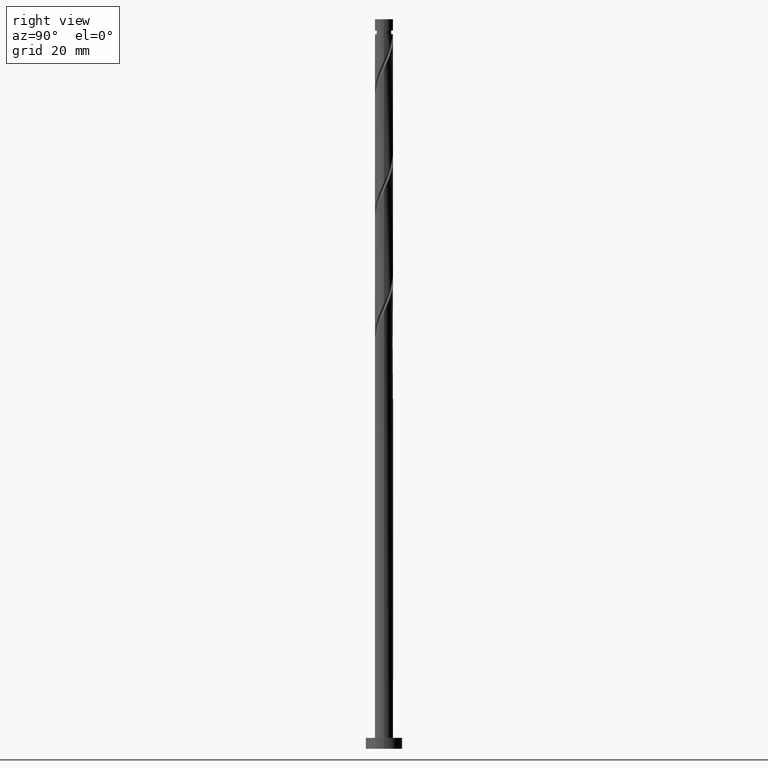
[diagram: clean part render]
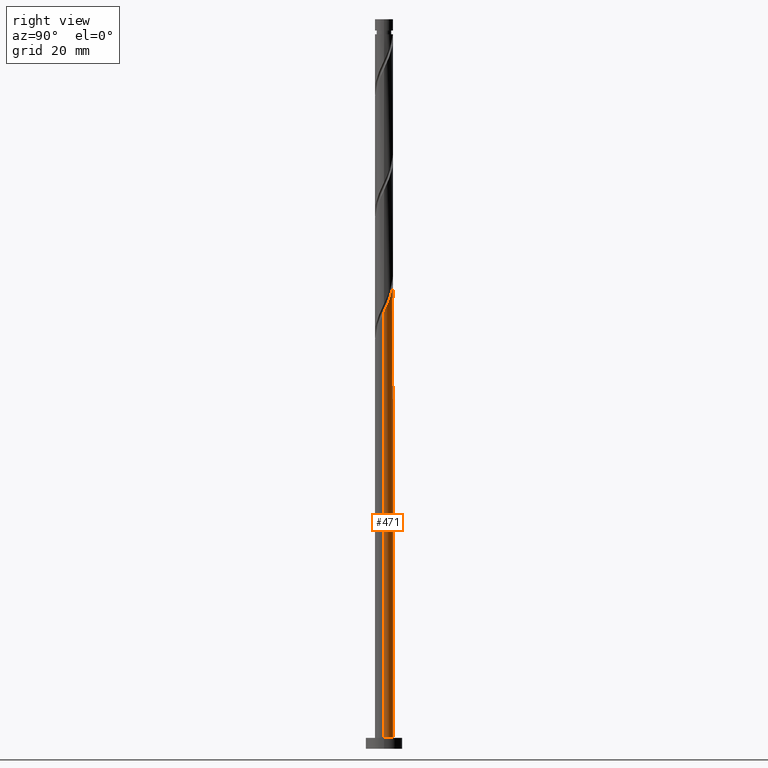
[diagram: same view with one face highlighted and labeled with its STEP entity id]
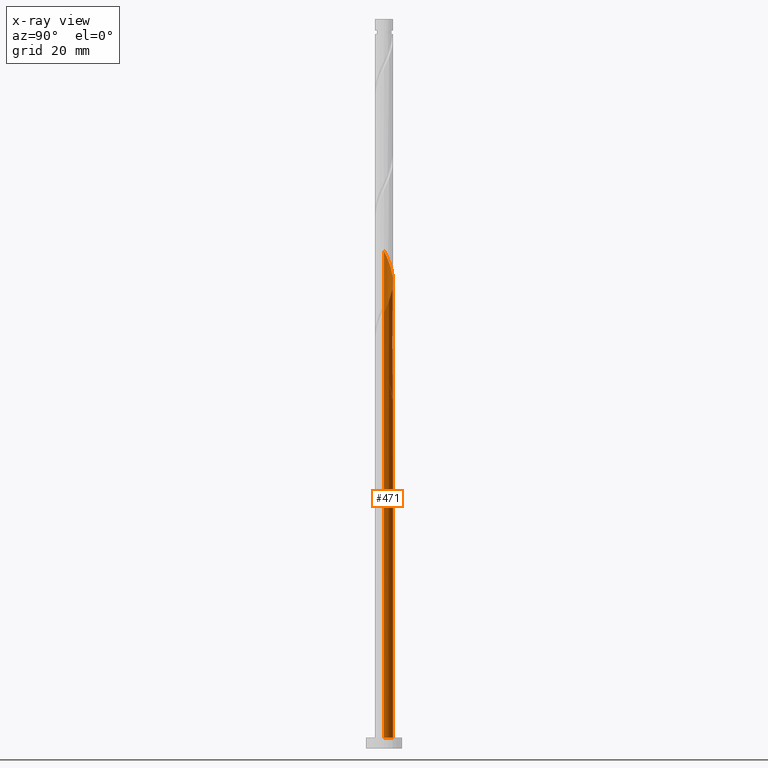
[diagram: x-ray of the same camera — body ghosted, the highlighted face saturated]
A machine part, right view. The second image highlights one B-rep face of the part: STEP entity #471.
The next image is the same camera in x-ray: the body ghosted, the highlighted face saturated — about 0% of this face is hidden behind the body in this view.
In plain terms, the highlighted cylindrical surface (edge-blend (fillet) strip) has radius 2.5 mm, axis along (-0, -0, -1).
Its self-contained STEP definition (entity closure, byte-faithful):
#14 = CARTESIAN_POINT ( 'NONE',  ( -1.409255045694378872, 2.091011141037081078, 97.96718956136638212 ) ) ;
#24 = VECTOR ( 'NONE', #134, 1000.000000000000000 ) ;
#55 = CARTESIAN_POINT ( 'NONE',  ( -0.7941578015096464327, 2.370509098548530424, 98.66163400581081078 ) ) ;
#63 = CARTESIAN_POINT ( 'NONE',  ( 0.4974937185533118145, 2.449999999999999734, 95.88385622803302510 ) ) ;
#67 = CARTESIAN_POINT ( 'NONE',  ( -2.475061956595794754, 0.4820743581320875992, 135.4671895613663537 ) ) ;
#76 = CARTESIAN_POINT ( 'NONE',  ( 2.500000000000000888, 0.2512594538148135714, 120.3537159420122435 ) ) ;
#85 = CARTESIAN_POINT ( 'NONE',  ( 2.384503709418420048, 0.8200423376424310629, 121.5783006724774822 ) ) ;
#124 = DIRECTION ( 'NONE',  ( -0.000000000000000000, -0.000000000000000000, -1.000000000000000000 ) ) ;
#134 = DIRECTION ( 'NONE',  ( -0.000000000000000000, -0.000000000000000000, -1.000000000000000000 ) ) ;
#192 = CARTESIAN_POINT ( 'NONE',  ( -0.1535646293339474611, 2.495279123588687753, 97.27274511692189662 ) ) ;
#195 = CARTESIAN_POINT ( 'NONE',  ( -0.4974937185533108153, 2.450000000000002842, 129.2171895613663253 ) ) ;
#211 = CARTESIAN_POINT ( 'NONE',  ( -0.4820743581320866555, 2.475061956595791646, 97.96718956136635370 ) ) ;
#213 = CARTESIAN_POINT ( 'NONE',  ( 2.237757425227750119, 1.114648691668403968, 122.2727451169219393 ) ) ;
#223 = CIRCLE ( 'NONE', #528, 2.500000000000000000 ) ;
#226 = DIRECTION ( 'NONE',  ( -3.081487911019577365E-30, -1.387778780781446307E-14, -1.000000000000000000 ) ) ;
#325 = CARTESIAN_POINT ( 'NONE',  ( -1.114648691668405300, 2.237757425227750119, 130.6060784502552394 ) ) ;
#333 = CARTESIAN_POINT ( 'NONE',  ( -1.873015379995218943, 1.655842198490353301, 101.4394117835886107 ) ) ;
#363 = ORIENTED_EDGE ( 'NONE', *, *, #1510, .F. ) ;
#386 = VERTEX_POINT ( 'NONE', #426 ) ;
#395 = CIRCLE ( 'NONE', #1278, 2.500000000000000000 ) ;
#413 = DIRECTION ( 'NONE',  ( 0.000000000000000000, 0.000000000000000000, 1.000000000000000000 ) ) ;
#426 = CARTESIAN_POINT ( 'NONE',  ( 0.4974937185533118145, 2.449999999999999734, 95.88385622803302510 ) ) ;
#428 = EDGE_CURVE ( 'NONE', #1638, #386, #558, .T. ) ;
#429 = CARTESIAN_POINT ( 'NONE',  ( -2.265956240501273200, 1.106241244887208985, 100.7449673391441252 ) ) ;
#446 = CARTESIAN_POINT ( 'NONE',  ( -0.1749450994641887080, 2.515496290581588301, 128.5227451169218966 ) ) ;
#460 = CARTESIAN_POINT ( 'NONE',  ( -2.500000000000003553, -2.250544558764799277E-15, 136.4869562394896150 ) ) ;
#462 = FACE_OUTER_BOUND ( 'NONE', #673, .T. ) ;
#468 = CARTESIAN_POINT ( 'NONE',  ( -2.499999999999999556, 0.2512594538148090195, 104.7473298473871353 ) ) ;
#471 = ADVANCED_FACE ( 'NONE', ( #462 ), #1284, .T. ) ;
#480 = CARTESIAN_POINT ( 'NONE',  ( 2.500000000000000000, 3.061616997868383141E-16, 200.0000000000000000 ) ) ;
#519 = CARTESIAN_POINT ( 'NONE',  ( -1.655842198490355077, 1.873015379995222052, 98.66163400581081078 ) ) ;
#528 = AXIS2_PLACEMENT_3D ( 'NONE', #742, #226, #889 ) ;
#540 = ORIENTED_EDGE ( 'NONE', *, *, #1161, .F. ) ;
#541 = CARTESIAN_POINT ( 'NONE',  ( -2.500000000000003553, -2.250544558764799277E-15, 103.1536229061563148 ) ) ;
#550 = VERTEX_POINT ( 'NONE', #755 ) ;
#558 =( BOUNDED_CURVE ( )  B_SPLINE_CURVE ( 2, ( #999, #468, #573, #887, #718, #1428, #333, #1146, #1705, #1436, #55, #211, #192, #865, #63 ),
 .UNSPECIFIED., .F., .T. ) 
 B_SPLINE_CURVE_WITH_KNOTS ( ( 3, 2, 2, 2, 2, 2, 2, 3 ),
 ( 0.9295317669814464612, 0.9375000000000000000, 0.9479166666666666297, 0.9583333333333333703, 0.9687500000000000000, 0.9791666666666666297, 0.9895833333333333703, 1.000000000000000000 ),
 .UNSPECIFIED. ) 
 CURVE ( )  GEOMETRIC_REPRESENTATION_ITEM ( )  RATIONAL_B_SPLINE_CURVE ( ( 0.9062941362546483859, 0.9031415850403529122, 0.9090909090909282675, 0.9013135103398466352, 0.9090909090909282675, 0.9013135103398466352, 0.9090909090909282675, 0.9013135103398466352, 0.9090909090909282675, 0.9013135103398466352, 0.9090909090909282675, 0.9013135103398466352, 0.9090909090909282675, 0.9013135103398466352, 0.9090909090909282675 ) ) 
 REPRESENTATION_ITEM ( '' )  );
#559 = CARTESIAN_POINT ( 'NONE',  ( -2.500000000000000444, 1.031811126609781405E-14, 105.2807562165764210 ) ) ;
#571 = CARTESIAN_POINT ( 'NONE',  ( 2.450000000000002842, 0.4974937185533110373, 120.8838562280330251 ) ) ;
#573 = CARTESIAN_POINT ( 'NONE',  ( -2.449999999999999734, 0.4974937185533113149, 104.2171895613663537 ) ) ;
#578 = CARTESIAN_POINT ( 'NONE',  ( 1.655019618953363914, 1.902429351286329950, 124.3560784502552536 ) ) ;
#585 = CARTESIAN_POINT ( 'NONE',  ( -1.409255045694378872, 2.091011141037081078, 131.3005228946996965 ) ) ;
#592 = DIRECTION ( 'NONE',  ( -0.000000000000000000, -0.000000000000000000, -1.000000000000000000 ) ) ;
#596 = CARTESIAN_POINT ( 'NONE',  ( 1.873015379995222940, 1.655842198490353523, 123.6616340058108108 ) ) ;
#651 = VERTEX_POINT ( 'NONE', #1615 ) ;
#673 = EDGE_LOOP ( 'NONE', ( #540, #1328, #1067, #1644, #363, #965, #1188, #1499 ) ) ;
#718 = CARTESIAN_POINT ( 'NONE',  ( -2.237757425227747010, 1.114648691668404634, 102.8283006724774680 ) ) ;
#742 = CARTESIAN_POINT ( 'NONE',  ( 0.000000000000000000, 0.000000000000000000, 95.88385622803305353 ) ) ;
#755 = CARTESIAN_POINT ( 'NONE',  ( 2.500000000000003553, 6.355358388538470584E-16, 119.8202895728229862 ) ) ;
#759 = LINE ( 'NONE', #1170, #1419 ) ;
#780 = VECTOR ( 'NONE', #1600, 1000.000000000000000 ) ;
#791 = LINE ( 'NONE', #977, #24 ) ;
#808 = DIRECTION ( 'NONE',  ( 1.000000000000000000, 0.000000000000000000, 0.000000000000000000 ) ) ;
#821 = VERTEX_POINT ( 'NONE', #1577 ) ;
#833 = CARTESIAN_POINT ( 'NONE',  ( -2.495279123588690418, 0.1535646293339485713, 102.8283006724774680 ) ) ;
#837 = CARTESIAN_POINT ( 'NONE',  ( -2.500000000000003553, -2.250544558764799277E-15, 136.4869562394896150 ) ) ;
#862 = CARTESIAN_POINT ( 'NONE',  ( -2.370509098548532645, 0.7941578015096485421, 134.7727451169218966 ) ) ;
#865 = CARTESIAN_POINT ( 'NONE',  ( 0.1749450994641913448, 2.515496290581585193, 96.57830067247748218 ) ) ;
#887 = CARTESIAN_POINT ( 'NONE',  ( -2.384503709418415163, 0.8200423376424315069, 103.5227451169219108 ) ) ;
#889 = DIRECTION ( 'NONE',  ( 0.000000000000000000, 1.000000000000000000, -1.665334536937734811E-14 ) ) ;
#919 =( BOUNDED_CURVE ( )  B_SPLINE_CURVE ( 2, ( #1652, #1375, #1202, #14, #519, #1108, #1090, #429, #1231, #1351, #833, #1642, #541 ),
 .UNSPECIFIED., .F., .F. ) 
 B_SPLINE_CURVE_WITH_KNOTS ( ( 3, 2, 2, 2, 2, 2, 3 ),
 ( 0.000000000000000000, 0.01041666666666662966, 0.02083333333333337034, 0.03125000000000000000, 0.04166666666666662966, 0.05208333333333337034, 0.05453176698144657220 ),
 .UNSPECIFIED. ) 
 CURVE ( )  GEOMETRIC_REPRESENTATION_ITEM ( )  RATIONAL_B_SPLINE_CURVE ( ( 0.9090909090909338186, 0.9013135103398520753, 0.9090909090909338186, 0.9013135103398520753, 0.9090909090909338186, 0.9013135103398520753, 0.9090909090909338186, 0.9013135103398520753, 0.9090909090909338186, 0.9013135103398520753, 0.9090909090909338186, 0.9072628343904273196, 0.9062941362546538260 ) ) 
 REPRESENTATION_ITEM ( '' )  );
#924 = VERTEX_POINT ( 'NONE', #837 ) ;
#965 = ORIENTED_EDGE ( 'NONE', *, *, #1440, .T. ) ;
#977 = CARTESIAN_POINT ( 'NONE',  ( -2.500000000000000000, 0.000000000000000000, 200.0000000000000000 ) ) ;
#999 = CARTESIAN_POINT ( 'NONE',  ( -2.500000000000000444, 1.031811126609781405E-14, 105.2807562165764210 ) ) ;
#1006 = CARTESIAN_POINT ( 'NONE',  ( 0.000000000000000000, 0.000000000000000000, 200.0000000000000000 ) ) ;
#1016 = CARTESIAN_POINT ( 'NONE',  ( 0.1535646293339501534, 2.495279123588690418, 127.8283006724774680 ) ) ;
#1028 = EDGE_CURVE ( 'NONE', #1221, #1071, #395, .T. ) ;
#1029 = LINE ( 'NONE', #480, #780 ) ;
#1067 = ORIENTED_EDGE ( 'NONE', *, *, #1028, .T. ) ;
#1071 = VERTEX_POINT ( 'NONE', #1505 ) ;
#1090 = CARTESIAN_POINT ( 'NONE',  ( -2.084192795893801797, 1.380630431920285117, 100.0505228946996823 ) ) ;
#1108 = CARTESIAN_POINT ( 'NONE',  ( -1.902429351286331061, 1.655019618953362359, 99.35607845025526785 ) ) ;
#1118 = CARTESIAN_POINT ( 'NONE',  ( -1.655842198490355077, 1.873015379995222052, 131.9949673391441252 ) ) ;
#1127 = CARTESIAN_POINT ( 'NONE',  ( -2.084192795893801797, 1.380630431920285117, 133.3838562280330393 ) ) ;
#1135 = CARTESIAN_POINT ( 'NONE',  ( -2.495279123588690418, 0.1535646293339485713, 136.1616340058107824 ) ) ;
#1143 = CARTESIAN_POINT ( 'NONE',  ( -2.265956240501273200, 1.106241244887208985, 134.0783006724774964 ) ) ;
#1146 = CARTESIAN_POINT ( 'NONE',  ( -1.655019618953360139, 1.902429351286329506, 100.7449673391441110 ) ) ;
#1161 = EDGE_CURVE ( 'NONE', #550, #924, #1302, .T. ) ;
#1170 = CARTESIAN_POINT ( 'NONE',  ( -2.500000000000000000, 0.000000000000000000, 200.0000000000000000 ) ) ;
#1188 = ORIENTED_EDGE ( 'NONE', *, *, #428, .F. ) ;
#1202 = CARTESIAN_POINT ( 'NONE',  ( -1.114648691668405300, 2.237757425227750119, 97.27274511692192505 ) ) ;
#1221 = VERTEX_POINT ( 'NONE', #1438 ) ;
#1231 = CARTESIAN_POINT ( 'NONE',  ( -2.370509098548532645, 0.7941578015096485421, 101.4394117835885822 ) ) ;
#1256 = CARTESIAN_POINT ( 'NONE',  ( 0.7941578015096493193, 2.370509098548532645, 126.4394117835885822 ) ) ;
#1278 = AXIS2_PLACEMENT_3D ( 'NONE', #1637, #413, #808 ) ;
#1284 = CYLINDRICAL_SURFACE ( 'NONE', #1623, 2.500000000000000000 ) ;
#1289 = CARTESIAN_POINT ( 'NONE',  ( 2.091011141037082410, 1.409255045694377317, 122.9671895613663679 ) ) ;
#1293 = EDGE_CURVE ( 'NONE', #550, #1221, #1029, .T. ) ;
#1302 =( BOUNDED_CURVE ( )  B_SPLINE_CURVE ( 2, ( #1549, #76, #571, #85, #213, #1289, #596, #578, #1701, #1568, #1256, #1410, #1016, #446, #195, #1432, #325, #585, #1118, #1671, #1127, #1143, #862, #67, #1135, #1689, #460 ),
 .UNSPECIFIED., .F., .T. ) 
 B_SPLINE_CURVE_WITH_KNOTS ( ( 3, 2, 2, 2, 2, 2, 2, 2, 2, 2, 2, 2, 2, 3 ),
 ( 0.1795317669814466832, 0.1875000000000000000, 0.1979166666666666297, 0.2083333333333333703, 0.2187500000000000000, 0.2291666666666666297, 0.2395833333333333703, 0.2500000000000000000, 0.2604166666666666297, 0.2708333333333333703, 0.2812500000000000000, 0.2916666666666666297, 0.3020833333333333703, 0.3045317669814462946 ),
 .UNSPECIFIED. ) 
 CURVE ( )  GEOMETRIC_REPRESENTATION_ITEM ( )  RATIONAL_B_SPLINE_CURVE ( ( 0.9062941362546537150, 0.9031415850403585743, 0.9090909090909338186, 0.9013135103398520753, 0.9090909090909338186, 0.9013135103398520753, 0.9090909090909338186, 0.9013135103398520753, 0.9090909090909338186, 0.9013135103398520753, 0.9090909090909338186, 0.9013135103398520753, 0.9090909090909338186, 0.9013135103398520753, 0.9090909090909338186, 0.9013135103398520753, 0.9090909090909338186, 0.9013135103398520753, 0.9090909090909338186, 0.9013135103398520753, 0.9090909090909338186, 0.9013135103398520753, 0.9090909090909338186, 0.9013135103398520753, 0.9090909090909338186, 0.9072628343904275416, 0.9062941362546541590 ) ) 
 REPRESENTATION_ITEM ( '' )  );
#1328 = ORIENTED_EDGE ( 'NONE', *, *, #1293, .T. ) ;
#1351 = CARTESIAN_POINT ( 'NONE',  ( -2.475061956595794754, 0.4820743581320875992, 102.1338562280330251 ) ) ;
#1365 = EDGE_CURVE ( 'NONE', #924, #1638, #759, .T. ) ;
#1375 = CARTESIAN_POINT ( 'NONE',  ( -0.8200423376424318400, 2.384503709418418715, 96.57830067247746797 ) ) ;
#1410 = CARTESIAN_POINT ( 'NONE',  ( 0.4820743581320889870, 2.475061956595793866, 127.1338562280330535 ) ) ;
#1419 = VECTOR ( 'NONE', #124, 1000.000000000000000 ) ;
#1428 = CARTESIAN_POINT ( 'NONE',  ( -2.091011141037077969, 1.409255045694377539, 102.1338562280330251 ) ) ;
#1432 = CARTESIAN_POINT ( 'NONE',  ( -0.8200423376424318400, 2.384503709418418715, 129.9116340058107824 ) ) ;
#1436 = CARTESIAN_POINT ( 'NONE',  ( -1.106241244887206987, 2.265956240501270980, 99.35607845025528206 ) ) ;
#1438 = CARTESIAN_POINT ( 'NONE',  ( 2.500000000000000000, 3.061616997868383141E-16, 3.000000000000000000 ) ) ;
#1440 = EDGE_CURVE ( 'NONE', #651, #386, #223, .T. ) ;
#1499 = ORIENTED_EDGE ( 'NONE', *, *, #1365, .F. ) ;
#1505 = CARTESIAN_POINT ( 'NONE',  ( -2.500000000000000000, 0.000000000000000000, 3.000000000000000000 ) ) ;
#1510 = EDGE_CURVE ( 'NONE', #651, #821, #919, .T. ) ;
#1549 = CARTESIAN_POINT ( 'NONE',  ( 2.500000000000003553, 6.355358388538470584E-16, 119.8202895728230004 ) ) ;
#1557 = DIRECTION ( 'NONE',  ( -1.000000000000000000, 0.000000000000000000, 0.000000000000000000 ) ) ;
#1568 = CARTESIAN_POINT ( 'NONE',  ( 1.106241244887210096, 2.265956240501273200, 125.7449673391441394 ) ) ;
#1577 = CARTESIAN_POINT ( 'NONE',  ( -2.500000000000003553, -2.250544558764799277E-15, 103.1536229061563148 ) ) ;
#1600 = DIRECTION ( 'NONE',  ( -0.000000000000000000, -0.000000000000000000, -1.000000000000000000 ) ) ;
#1615 = CARTESIAN_POINT ( 'NONE',  ( -0.4974937185533108153, 2.450000000000002842, 95.88385622803302510 ) ) ;
#1620 = EDGE_CURVE ( 'NONE', #821, #1071, #791, .T. ) ;
#1623 = AXIS2_PLACEMENT_3D ( 'NONE', #1006, #592, #1557 ) ;
#1637 = CARTESIAN_POINT ( 'NONE',  ( 0.000000000000000000, 0.000000000000000000, 3.000000000000000000 ) ) ;
#1638 = VERTEX_POINT ( 'NONE', #559 ) ;
#1642 = CARTESIAN_POINT ( 'NONE',  ( -2.500000000000003553, 0.07685487914417540867, 102.9904592181281515 ) ) ;
#1644 = ORIENTED_EDGE ( 'NONE', *, *, #1620, .F. ) ;
#1652 = CARTESIAN_POINT ( 'NONE',  ( -0.4974937185533108153, 2.450000000000002842, 95.88385622803302510 ) ) ;
#1671 = CARTESIAN_POINT ( 'NONE',  ( -1.902429351286331061, 1.655019618953362359, 132.6894117835885822 ) ) ;
#1689 = CARTESIAN_POINT ( 'NONE',  ( -2.500000000000003553, 0.07685487914418412392, 136.3237925514614517 ) ) ;
#1701 = CARTESIAN_POINT ( 'NONE',  ( 1.380630431920286005, 2.084192795893801797, 125.0505228946996681 ) ) ;
#1705 = CARTESIAN_POINT ( 'NONE',  ( -1.380630431920283341, 2.084192795893799133, 100.0505228946996823 ) ) ;